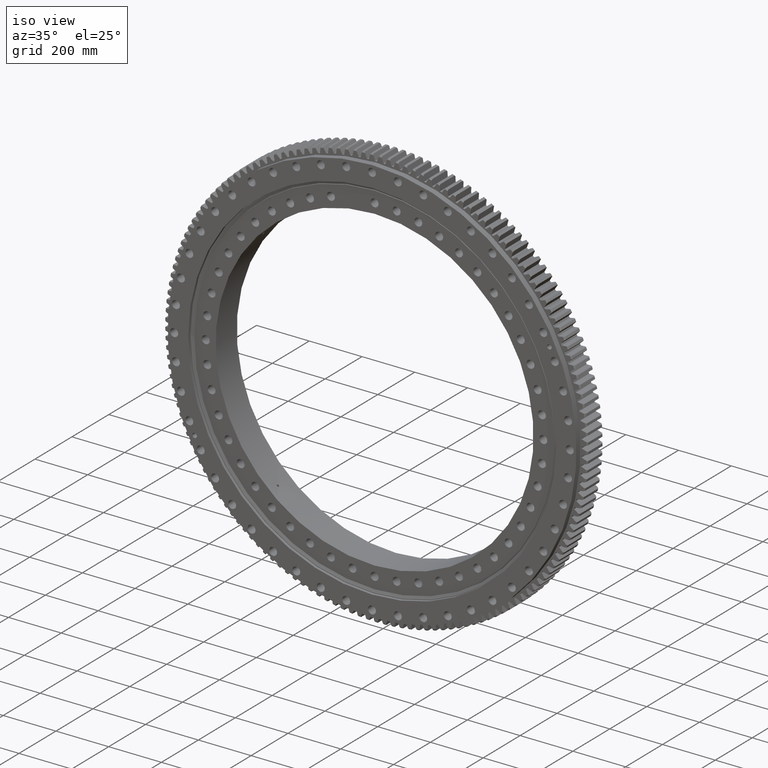
[diagram: clean part render]
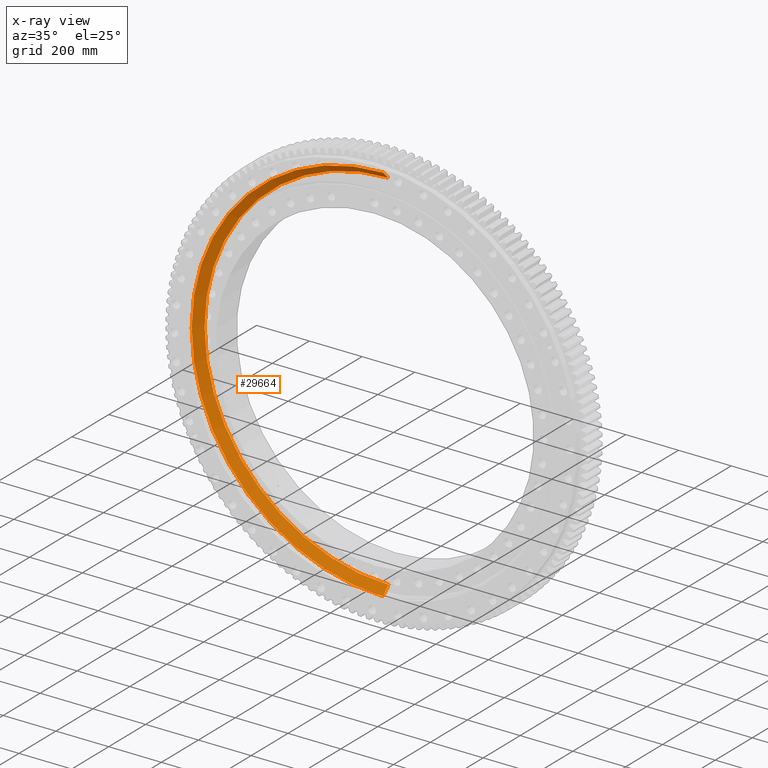
[diagram: x-ray — body ghosted, one internal face saturated and labeled with its STEP entity id]
A machine part, iso view, then the same camera in x-ray: the body is ghosted and one INTERNAL B-rep face — a face not visible from any outside direction — is saturated and labeled: STEP entity #29664.
In plain terms, the highlighted conical surface has half-angle 45 deg.
Its self-contained STEP definition (entity closure, byte-faithful):
#903 = VERTEX_POINT ( 'NONE', #3854 ) ;
#1058 = ORIENTED_EDGE ( 'NONE', *, *, #43638, .F. ) ;
#1724 = DIRECTION ( 'NONE',  ( 0.0000000000000000000, 0.0000000000000000000, -1.000000000000000000 ) ) ;
#3505 = VECTOR ( 'NONE', #28607, 1000.000000000000000 ) ;
#3510 = EDGE_CURVE ( 'NONE', #19549, #903, #14561, .T. ) ;
#3854 = CARTESIAN_POINT ( 'NONE',  ( 0.0000000000000000000, 0.7071067811865796600, 726.1126983722078900 ) ) ;
#4392 = CARTESIAN_POINT ( 'NONE',  ( 8.715582862936321200E-014, 29.56980515339462600, 697.2500000000000000 ) ) ;
#5044 = VERTEX_POINT ( 'NONE', #42652 ) ;
#6495 = DIRECTION ( 'NONE',  ( -0.0000000000000000000, 1.000000000000000000, -0.0000000000000000000 ) ) ;
#6990 = CARTESIAN_POINT ( 'NONE',  ( 0.0000000000000000000, 29.56980515339462600, 0.0000000000000000000 ) ) ;
#7566 = EDGE_CURVE ( 'NONE', #28727, #903, #21457, .T. ) ;
#10372 = DIRECTION ( 'NONE',  ( 0.0000000000000000000, 0.0000000000000000000, 1.000000000000000000 ) ) ;
#14561 = CIRCLE ( 'NONE', #19174, 726.1126983722078900 ) ;
#16672 = ORIENTED_EDGE ( 'NONE', *, *, #23289, .T. ) ;
#17854 = ORIENTED_EDGE ( 'NONE', *, *, #3510, .F. ) ;
#19174 = AXIS2_PLACEMENT_3D ( 'NONE', #26745, #6495, #30158 ) ;
#19544 = ORIENTED_EDGE ( 'NONE', *, *, #7566, .T. ) ;
#19549 = VERTEX_POINT ( 'NONE', #39768 ) ;
#19965 = VECTOR ( 'NONE', #22708, 1000.000000000000000 ) ;
#21457 = LINE ( 'NONE', #25197, #3505 ) ;
#22093 = DIRECTION ( 'NONE',  ( 0.0000000000000000000, -1.000000000000000000, 0.0000000000000000000 ) ) ;
#22708 = DIRECTION ( 'NONE',  ( 0.0000000000000000000, -0.7071067811865493500, -0.7071067811865456900 ) ) ;
#23009 = AXIS2_PLACEMENT_3D ( 'NONE', #38974, #22093, #1724 ) ;
#23289 = EDGE_CURVE ( 'NONE', #5044, #28727, #26680, .T. ) ;
#25197 = CARTESIAN_POINT ( 'NONE',  ( 8.538849807054920200E-014, 29.56980515339462600, 697.2500000000000000 ) ) ;
#26339 = CONICAL_SURFACE ( 'NONE', #23009, 697.2500000000000000, 0.7853981633974457300 ) ;
#26680 = CIRCLE ( 'NONE', #36291, 697.2500000000000000 ) ;
#26745 = CARTESIAN_POINT ( 'NONE',  ( 0.0000000000000000000, 0.7071067811865796600, 0.0000000000000000000 ) ) ;
#27370 = FACE_OUTER_BOUND ( 'NONE', #37991, .T. ) ;
#28607 = DIRECTION ( 'NONE',  ( 8.659560562354910700E-017, -0.7071067811865493500, 0.7071067811865456900 ) ) ;
#28727 = VERTEX_POINT ( 'NONE', #4392 ) ;
#28943 = LINE ( 'NONE', #36181, #19965 ) ;
#29664 = ADVANCED_FACE ( 'NONE', ( #27370 ), #26339, .F. ) ;
#30158 = DIRECTION ( 'NONE',  ( 0.0000000000000000000, 0.0000000000000000000, 1.000000000000000000 ) ) ;
#30646 = DIRECTION ( 'NONE',  ( -0.0000000000000000000, 1.000000000000000000, -0.0000000000000000000 ) ) ;
#36181 = CARTESIAN_POINT ( 'NONE',  ( 0.0000000000000000000, 29.56980515339462600, -697.2500000000000000 ) ) ;
#36291 = AXIS2_PLACEMENT_3D ( 'NONE', #6990, #30646, #10372 ) ;
#37991 = EDGE_LOOP ( 'NONE', ( #16672, #19544, #17854, #1058 ) ) ;
#38974 = CARTESIAN_POINT ( 'NONE',  ( 0.0000000000000000000, 29.56980515339462600, 0.0000000000000000000 ) ) ;
#39768 = CARTESIAN_POINT ( 'NONE',  ( 8.892315918817719700E-014, 0.7071067811865796600, -726.1126983722078900 ) ) ;
#42652 = CARTESIAN_POINT ( 'NONE',  ( 0.0000000000000000000, 29.56980515339462600, -697.2500000000000000 ) ) ;
#43638 = EDGE_CURVE ( 'NONE', #5044, #19549, #28943, .T. ) ;